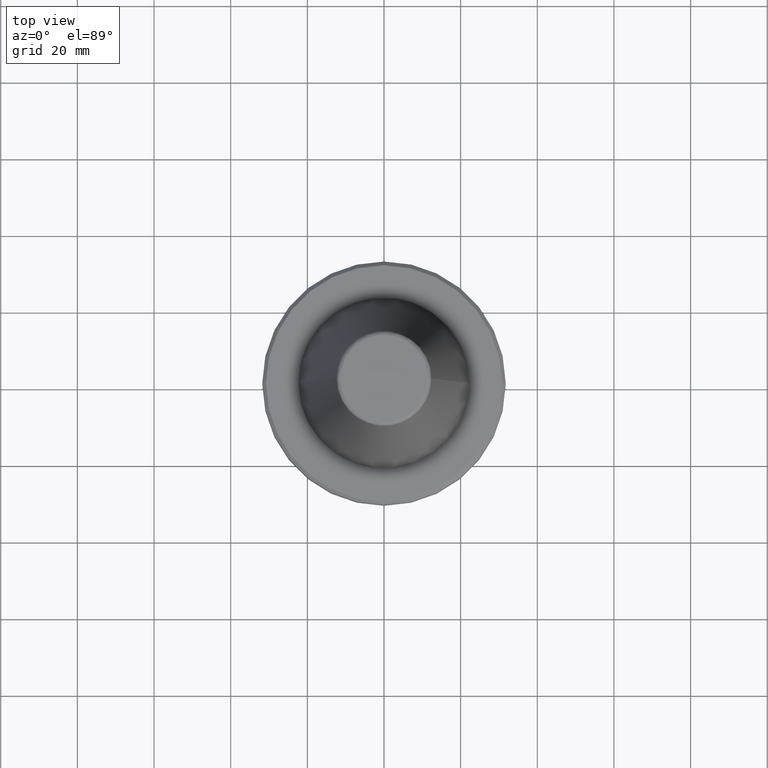
[diagram: clean part render]
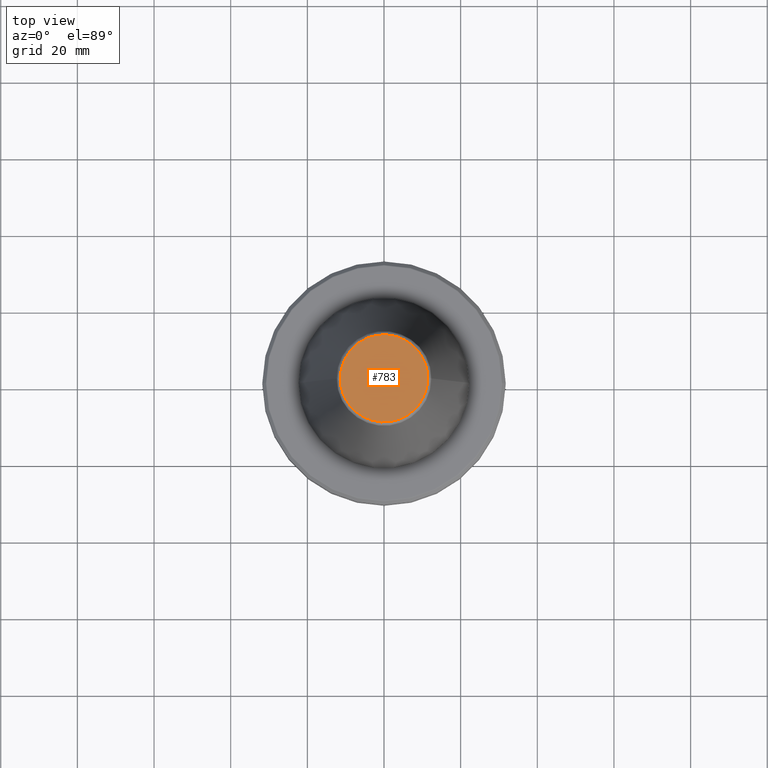
[diagram: same view with one face highlighted and labeled with its STEP entity id]
A machine part, top view. The second image highlights one B-rep face of the part: STEP entity #783.
In plain terms, the highlighted planar face has unit normal (0, 0, 1).
Its self-contained STEP definition (entity closure, byte-faithful):
#123 = CARTESIAN_POINT ( 'NONE',  ( -11.38516258900000500, 22.77032517900000000, 68.40000000000002000 ) ) ;
#160 =( BOUNDED_CURVE ( )  B_SPLINE_CURVE ( 3, ( #633, #123, #1378, #1250 ),
 .UNSPECIFIED., .F., .F. ) 
 B_SPLINE_CURVE_WITH_KNOTS ( ( 4, 4 ),
 ( 0.0000000000000000000, 1.000000000000000000 ),
 .UNSPECIFIED. ) 
 CURVE ( )  GEOMETRIC_REPRESENTATION_ITEM ( )  RATIONAL_B_SPLINE_CURVE ( ( 0.9606698257068200200, 0.3202232752356071200, 0.3202232752356071200, 0.9606698257068200200 ) ) 
 REPRESENTATION_ITEM ( '' )  );
#213 = CARTESIAN_POINT ( 'NONE',  ( -11.38516258847487900, 0.0000000000000000000, 68.40000000000000600 ) ) ;
#298 = CARTESIAN_POINT ( 'NONE',  ( -11.38516258900000500, -22.77032517900000000, 68.40000000000002000 ) ) ;
#364 = EDGE_LOOP ( 'NONE', ( #1188, #524 ) ) ;
#371 = EDGE_CURVE ( 'NONE', #406, #1468, #1119, .T. ) ;
#406 = VERTEX_POINT ( 'NONE', #1584 ) ;
#524 = ORIENTED_EDGE ( 'NONE', *, *, #371, .F. ) ;
#576 = AXIS2_PLACEMENT_3D ( 'NONE', #1651, #1654, #896 ) ;
#633 = CARTESIAN_POINT ( 'NONE',  ( -11.38516258847487900, 0.0000000000000000000, 68.40000000000000600 ) ) ;
#686 = CARTESIAN_POINT ( 'NONE',  ( 11.38516258847488200, 0.0000000000000000000, 68.40000000000000600 ) ) ;
#698 = FACE_OUTER_BOUND ( 'NONE', #364, .T. ) ;
#783 = ADVANCED_FACE ( 'NONE', ( #698 ), #1379, .T. ) ;
#809 = CARTESIAN_POINT ( 'NONE',  ( 11.38516258900000500, -22.77032517900000000, 68.40000000000002000 ) ) ;
#896 = DIRECTION ( 'NONE',  ( 1.000000000000000000, 0.0000000000000000000, -0.0000000000000000000 ) ) ;
#1119 =( BOUNDED_CURVE ( )  B_SPLINE_CURVE ( 3, ( #686, #809, #298, #1231 ),
 .UNSPECIFIED., .F., .F. ) 
 B_SPLINE_CURVE_WITH_KNOTS ( ( 4, 4 ),
 ( 0.0000000000000000000, 1.000000000000000000 ),
 .UNSPECIFIED. ) 
 CURVE ( )  GEOMETRIC_REPRESENTATION_ITEM ( )  RATIONAL_B_SPLINE_CURVE ( ( 0.9606698257068210200, 0.3202232752356071200, 0.3202232752356071200, 0.9606698257068210200 ) ) 
 REPRESENTATION_ITEM ( '' )  );
#1188 = ORIENTED_EDGE ( 'NONE', *, *, #1258, .F. ) ;
#1231 = CARTESIAN_POINT ( 'NONE',  ( -11.38516258847487900, 0.0000000000000000000, 68.40000000000000600 ) ) ;
#1250 = CARTESIAN_POINT ( 'NONE',  ( 11.38516258847488200, 0.0000000000000000000, 68.40000000000000600 ) ) ;
#1258 = EDGE_CURVE ( 'NONE', #1468, #406, #160, .T. ) ;
#1378 = CARTESIAN_POINT ( 'NONE',  ( 11.38516258900000500, 22.77032517900000000, 68.40000000000002000 ) ) ;
#1379 = PLANE ( 'NONE',  #576 ) ;
#1468 = VERTEX_POINT ( 'NONE', #213 ) ;
#1584 = CARTESIAN_POINT ( 'NONE',  ( 11.38516258847488200, 0.0000000000000000000, 68.40000000000000600 ) ) ;
#1651 = CARTESIAN_POINT ( 'NONE',  ( -11.52178454100000100, -11.52180192099999800, 68.40000000000000600 ) ) ;
#1654 = DIRECTION ( 'NONE',  ( 0.0000000000000000000, 0.0000000000000000000, 1.000000000000000000 ) ) ;